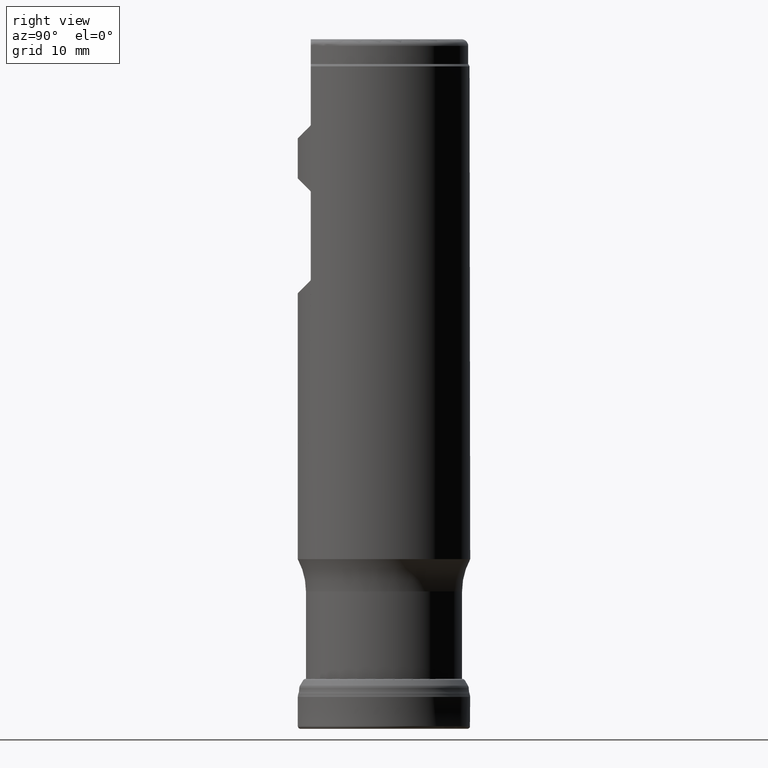
[diagram: clean part render]
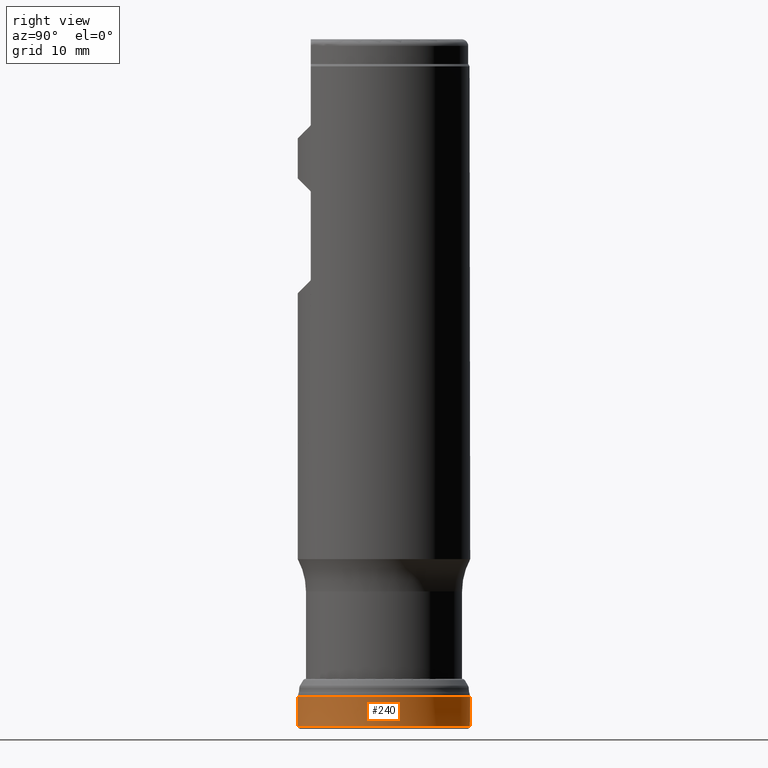
[diagram: same view with one face highlighted and labeled with its STEP entity id]
A machine part, right view. The second image highlights one B-rep face of the part: STEP entity #240.
In plain terms, the highlighted face is a SurfaceOfRevolution surface.
Its self-contained STEP definition (entity closure, byte-faithful):
#128=SURFACE_OF_REVOLUTION('',#809,#149);
#149=AXIS1_PLACEMENT('',#1680,#1077);
#240=ADVANCED_FACE('',(#366,#367),#128,.F.);
#366=FACE_BOUND('',#456,.T.);
#367=FACE_BOUND('',#457,.T.);
#456=EDGE_LOOP('',(#592));
#457=EDGE_LOOP('',(#593));
#592=ORIENTED_EDGE('',*,*,#721,.T.);
#593=ORIENTED_EDGE('',*,*,#701,.F.);
#633=VERTEX_POINT('',#1493);
#653=VERTEX_POINT('',#1655);
#701=EDGE_CURVE('',#633,#633,#743,.T.);
#721=EDGE_CURVE('',#653,#653,#763,.T.);
#743=CIRCLE('',#865,12.7);
#763=CIRCLE('',#885,12.6999999641177);
#809=B_SPLINE_CURVE_WITH_KNOTS('',3,(#1668,#1669,#1670,#1671,#1672,#1673,
#1674,#1675,#1676,#1677,#1678,#1679),.UNSPECIFIED.,.F.,.F.,(4,1,1,1,1,1,
1,1,1,4),(0.,0.221418157861957,0.365983083750147,0.510548009638337,0.655112935526528,
0.799677861414718,0.871960324358813,0.90810155583086,0.944242787302908,
1.),.UNSPECIFIED.);
#865=AXIS2_PLACEMENT_3D('',#1492,#1009,#1010);
#885=AXIS2_PLACEMENT_3D('',#1654,#1074,#1075);
#1009=DIRECTION('',(0.,1.17145536458252E-15,1.));
#1010=DIRECTION('',(0.,-1.,1.16103539730731E-15));
#1074=DIRECTION('',(0.,1.17145536458252E-15,1.));
#1075=DIRECTION('',(0.,-1.,1.169572425592E-15));
#1077=DIRECTION('',(0.,1.17145536458252E-15,1.));
#1492=CARTESIAN_POINT('',(0.,5.51629875031185E-15,4.70892781499849));
#1493=CARTESIAN_POINT('',(0.,-12.7,4.70892781499851));
#1654=CARTESIAN_POINT('',(0.,4.60709331897368E-16,0.393279458890483));
#1655=CARTESIAN_POINT('',(0.,-12.6999999641177,0.393279458890498));
#1668=CARTESIAN_POINT('',(12.6851114338255,-0.614774683464543,4.7089278149985));
#1669=CARTESIAN_POINT('',(12.6893022130307,-0.700052781619789,4.3906679803112));
#1670=CARTESIAN_POINT('',(12.6924482482272,-0.841021560379687,3.86456694619526));
#1671=CARTESIAN_POINT('',(12.6844232341855,-1.03765551372576,3.13071376657447));
#1672=CARTESIAN_POINT('',(12.6688639016886,-1.20465003445696,2.50747195226286));
#1673=CARTESIAN_POINT('',(12.6456743610281,-1.37158547527239,1.88444600390969));
#1674=CARTESIAN_POINT('',(12.6228636633574,-1.51058083390428,1.36536629456014));
#1675=CARTESIAN_POINT('',(12.605725075243,-1.60812748473489,1.0021262866223));
#1676=CARTESIAN_POINT('',(12.5956364747836,-1.66337306516829,0.794465395048889));
#1677=CARTESIAN_POINT('',(12.5861866716016,-1.71394688967965,0.610805312536115));
#1678=CARTESIAN_POINT('',(12.5819625461257,-1.73390185774127,0.475524640853963));
#1679=CARTESIAN_POINT('',(12.57952963207,-1.74511699449154,0.393279458890485));
#1680=CARTESIAN_POINT('',(0.,0.,0.));